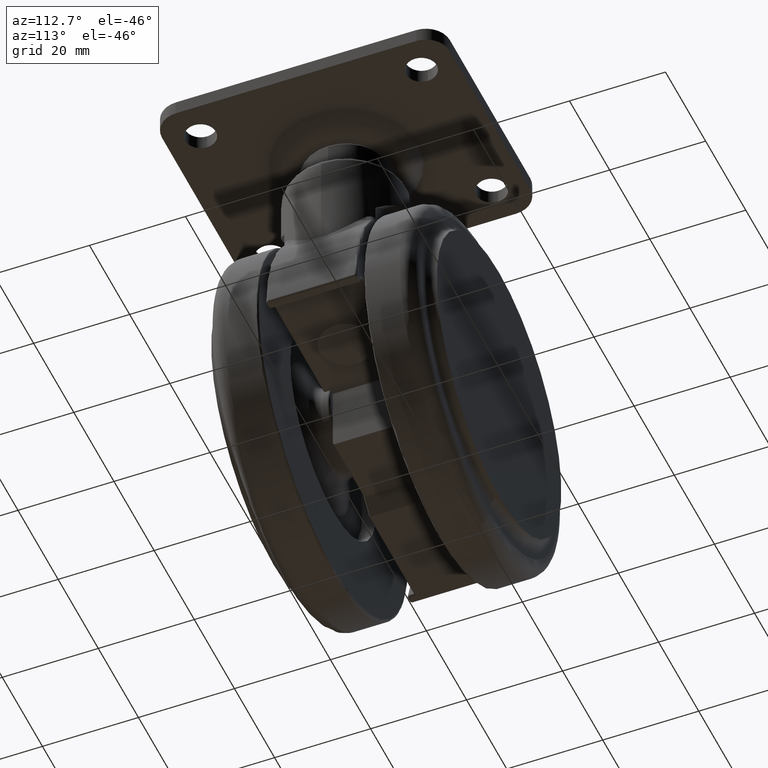
[diagram: clean part render]
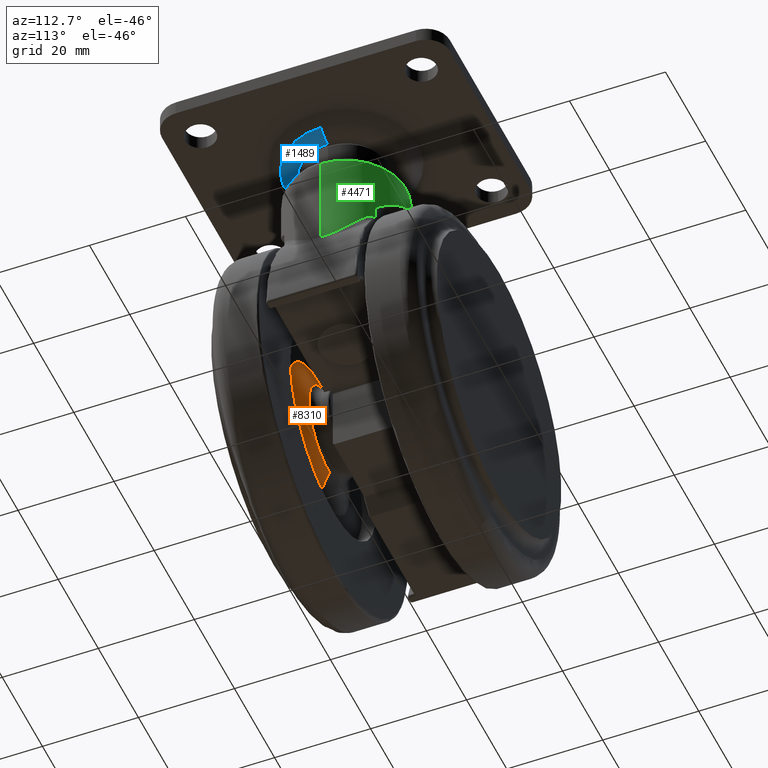
[diagram: same view with three faces highlighted in distinct colors, each labeled with its STEP entity id]
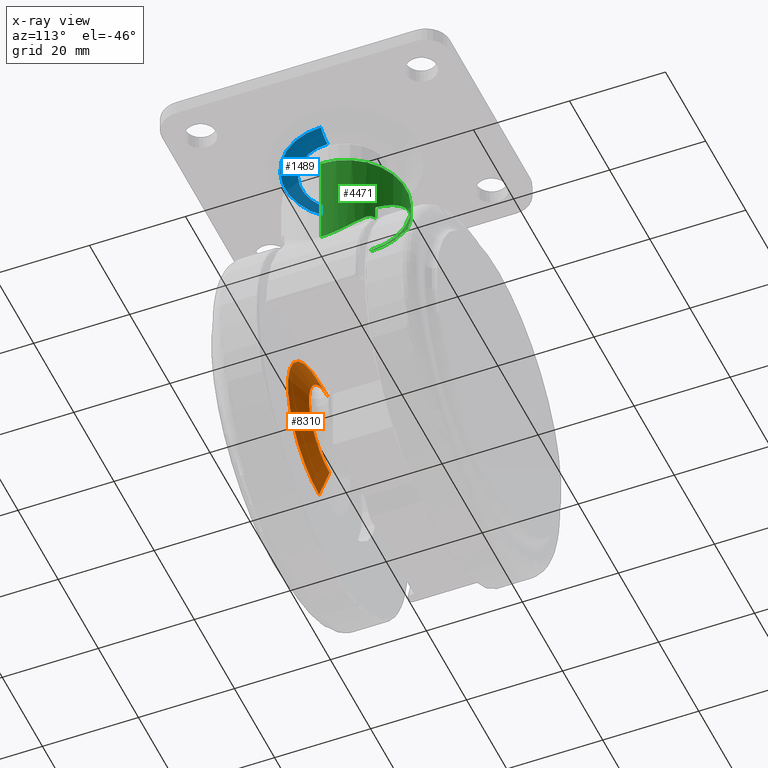
[diagram: x-ray of the same camera — body ghosted, the three highlighted faces saturated]
A machine part, auxiliary view with three faces highlighted in distinct colors.
The next image is the same camera in x-ray (body ghosted, the three faces saturated) — at least one of them is partly hidden behind the body in this view.
Their STEP definitions:

[orange] entity #8310 — the highlighted conical surface has half-angle 67.536 deg.
#177 = VERTEX_POINT ( 'NONE', #8732 ) ;
#424 = EDGE_CURVE ( 'NONE', #4074, #1615, #5261, .T. ) ;
#449 = AXIS2_PLACEMENT_3D ( 'NONE', #7036, #2832, #7751 ) ;
#812 = CIRCLE ( 'NONE', #1290, 10.23579126016620200 ) ;
#1241 = ORIENTED_EDGE ( 'NONE', *, *, #2186, .F. ) ;
#1290 = AXIS2_PLACEMENT_3D ( 'NONE', #7236, #3044, #7945 ) ;
#1615 = VERTEX_POINT ( 'NONE', #2672 ) ;
#1928 = DIRECTION ( 'NONE',  ( 0.0000000000000000000, 0.0000000000000000000, -1.000000000000000000 ) ) ;
#1983 = CIRCLE ( 'NONE', #449, 15.50000000000000000 ) ;
#2186 = EDGE_CURVE ( 'NONE', #1615, #177, #1983, .T. ) ;
#2672 = CARTESIAN_POINT ( 'NONE',  ( -20.00000000000000000, -14.00000000000000000, -56.00000000000000000 ) ) ;
#2832 = DIRECTION ( 'NONE',  ( 0.0000000000000000000, -1.000000000000000000, 0.0000000000000000000 ) ) ;
#2878 = CARTESIAN_POINT ( 'NONE',  ( -20.00000000000000000, -14.00000000000000000, -56.00000000000000000 ) ) ;
#3044 = DIRECTION ( 'NONE',  ( 0.0000000000000000000, -1.000000000000000000, 0.0000000000000000000 ) ) ;
#4020 = CARTESIAN_POINT ( 'NONE',  ( -19.99999999999999600, -14.00000000000000000, -25.00000000000000000 ) ) ;
#4035 = DIRECTION ( 'NONE',  ( 0.0000000000000000000, -1.000000000000000000, 0.0000000000000000000 ) ) ;
#4074 = VERTEX_POINT ( 'NONE', #8306 ) ;
#4340 = ORIENTED_EDGE ( 'NONE', *, *, #7129, .T. ) ;
#4354 = LINE ( 'NONE', #4020, #7853 ) ;
#4618 = CARTESIAN_POINT ( 'NONE',  ( -19.99999999999999600, -11.82335740127932100, -30.26420873983379800 ) ) ;
#4907 = EDGE_CURVE ( 'NONE', #8701, #177, #4354, .T. ) ;
#4911 = DIRECTION ( 'NONE',  ( 0.0000000000000000000, -0.3821043699168795200, -0.9241191754803188600 ) ) ;
#5000 = FACE_OUTER_BOUND ( 'NONE', #8636, .T. ) ;
#5261 = LINE ( 'NONE', #2878, #8808 ) ;
#5428 = CARTESIAN_POINT ( 'NONE',  ( -20.00000000000000000, -14.00000000000000000, -40.50000000000000000 ) ) ;
#6363 = ORIENTED_EDGE ( 'NONE', *, *, #424, .F. ) ;
#6639 = CONICAL_SURFACE ( 'NONE', #7512, 15.50000000000000000, 1.178723936475072600 ) ;
#7036 = CARTESIAN_POINT ( 'NONE',  ( -20.00000000000000000, -14.00000000000000000, -40.50000000000000000 ) ) ;
#7129 = EDGE_CURVE ( 'NONE', #4074, #8701, #812, .T. ) ;
#7236 = CARTESIAN_POINT ( 'NONE',  ( -20.00000000000000000, -11.82335740127932100, -40.50000000000000000 ) ) ;
#7512 = AXIS2_PLACEMENT_3D ( 'NONE', #5428, #4035, #1928 ) ;
#7751 = DIRECTION ( 'NONE',  ( 0.0000000000000000000, 0.0000000000000000000, -1.000000000000000000 ) ) ;
#7853 = VECTOR ( 'NONE', #8938, 1000.000000000000100 ) ;
#7945 = DIRECTION ( 'NONE',  ( 0.0000000000000000000, 0.0000000000000000000, -1.000000000000000000 ) ) ;
#8282 = ORIENTED_EDGE ( 'NONE', *, *, #4907, .T. ) ;
#8306 = CARTESIAN_POINT ( 'NONE',  ( -20.00000000000000000, -11.82335740127932100, -50.73579126016620200 ) ) ;
#8310 = ADVANCED_FACE ( 'NONE', ( #5000 ), #6639, .T. ) ;
#8636 = EDGE_LOOP ( 'NONE', ( #4340, #8282, #1241, #6363 ) ) ;
#8701 = VERTEX_POINT ( 'NONE', #4618 ) ;
#8732 = CARTESIAN_POINT ( 'NONE',  ( -19.99999999999999600, -14.00000000000000000, -25.00000000000000000 ) ) ;
#8808 = VECTOR ( 'NONE', #4911, 1000.000000000000100 ) ;
#8938 = DIRECTION ( 'NONE',  ( 1.131719590282663600E-016, -0.3821043699168795200, 0.9241191754803188600 ) ) ;

[blue] entity #1489 — the highlighted toroidal blend (fillet) surface has major radius 9.2637 mm and minor (blend) radius 5 mm.
#508 = AXIS2_PLACEMENT_3D ( 'NONE', #6356, #7064, #8499 ) ;
#586 = AXIS2_PLACEMENT_3D ( 'NONE', #3270, #8181, #3988 ) ;
#894 = EDGE_CURVE ( 'NONE', #1286, #4852, #7165, .T. ) ;
#1286 = VERTEX_POINT ( 'NONE', #3637 ) ;
#1489 = ADVANCED_FACE ( 'NONE', ( #5495 ), #7381, .T. ) ;
#1692 = AXIS2_PLACEMENT_3D ( 'NONE', #8324, #4132, #9042 ) ;
#1775 = AXIS2_PLACEMENT_3D ( 'NONE', #2849, #7766, #3582 ) ;
#2348 = EDGE_CURVE ( 'NONE', #8521, #4852, #4204, .T. ) ;
#2820 = CIRCLE ( 'NONE', #1775, 5.000000000000000000 ) ;
#2849 = CARTESIAN_POINT ( 'NONE',  ( 9.263748892140029100, 1.134482042886412700E-015, 12.50000000000000000 ) ) ;
#2929 = CARTESIAN_POINT ( 'NONE',  ( 9.263748892140029100, 1.342638959639023000E-015, 7.500000000000000000 ) ) ;
#2935 = CARTESIAN_POINT ( 'NONE',  ( -9.263748892140029100, 0.0000000000000000000, 12.50000000000000000 ) ) ;
#3265 = ORIENTED_EDGE ( 'NONE', *, *, #2348, .F. ) ;
#3270 = CARTESIAN_POINT ( 'NONE',  ( 0.0000000000000000000, 0.0000000000000000000, 8.833439107092829100 ) ) ;
#3358 = ORIENTED_EDGE ( 'NONE', *, *, #6194, .T. ) ;
#3435 = EDGE_CURVE ( 'NONE', #5974, #8521, #2820, .T. ) ;
#3582 = DIRECTION ( 'NONE',  ( -1.000000000000000000, -1.224646799147353200E-016, 0.0000000000000000000 ) ) ;
#3637 = CARTESIAN_POINT ( 'NONE',  ( -12.66320932265007600, 0.0000000000000000000, 8.833439107092829100 ) ) ;
#3654 = DIRECTION ( 'NONE',  ( 0.0000000000000000000, 0.0000000000000000000, -1.000000000000000000 ) ) ;
#3988 = DIRECTION ( 'NONE',  ( -1.000000000000000000, 0.0000000000000000000, 0.0000000000000000000 ) ) ;
#4005 = CARTESIAN_POINT ( 'NONE',  ( 12.66320932265007600, 1.550795876391633700E-015, 8.833439107092829100 ) ) ;
#4132 = DIRECTION ( 'NONE',  ( 0.0000000000000000000, 0.0000000000000000000, -1.000000000000000000 ) ) ;
#4204 = CIRCLE ( 'NONE', #1692, 9.263748892140029100 ) ;
#4665 = CARTESIAN_POINT ( 'NONE',  ( -9.263748892140029100, 0.0000000000000000000, 7.500000000000000000 ) ) ;
#4720 = ORIENTED_EDGE ( 'NONE', *, *, #894, .T. ) ;
#4852 = VERTEX_POINT ( 'NONE', #4665 ) ;
#5495 = FACE_OUTER_BOUND ( 'NONE', #6169, .T. ) ;
#5845 = CIRCLE ( 'NONE', #586, 12.66320932265004000 ) ;
#5974 = VERTEX_POINT ( 'NONE', #4005 ) ;
#6169 = EDGE_LOOP ( 'NONE', ( #8894, #3358, #4720, #3265 ) ) ;
#6194 = EDGE_CURVE ( 'NONE', #5974, #1286, #5845, .T. ) ;
#6356 = CARTESIAN_POINT ( 'NONE',  ( 0.0000000000000000000, 0.0000000000000000000, 12.50000000000000000 ) ) ;
#7064 = DIRECTION ( 'NONE',  ( 0.0000000000000000000, 0.0000000000000000000, -1.000000000000000000 ) ) ;
#7165 = CIRCLE ( 'NONE', #8234, 5.000000000000000000 ) ;
#7381 = TOROIDAL_SURFACE ( 'NONE', #508, 9.263748892140029100, 5.000000000000000000 ) ;
#7766 = DIRECTION ( 'NONE',  ( -1.224646799147353200E-016, 1.000000000000000000, 0.0000000000000000000 ) ) ;
#7839 = DIRECTION ( 'NONE',  ( -0.0000000000000000000, -1.000000000000000000, -0.0000000000000000000 ) ) ;
#8181 = DIRECTION ( 'NONE',  ( 0.0000000000000000000, 0.0000000000000000000, -1.000000000000000000 ) ) ;
#8234 = AXIS2_PLACEMENT_3D ( 'NONE', #2935, #7839, #3654 ) ;
#8324 = CARTESIAN_POINT ( 'NONE',  ( 0.0000000000000000000, 0.0000000000000000000, 7.500000000000000000 ) ) ;
#8499 = DIRECTION ( 'NONE',  ( -1.000000000000000000, 0.0000000000000000000, 0.0000000000000000000 ) ) ;
#8521 = VERTEX_POINT ( 'NONE', #2929 ) ;
#8894 = ORIENTED_EDGE ( 'NONE', *, *, #3435, .F. ) ;
#9042 = DIRECTION ( 'NONE',  ( -1.000000000000000000, 0.0000000000000000000, 0.0000000000000000000 ) ) ;

[green] entity #4471 — the highlighted cylindrical surface (partial cylindrical patch) has radius 12.5 mm, axis along (0, 0, 1).
#164 = B_SPLINE_CURVE_WITH_KNOTS ( 'NONE', 3,
 ( #3450, #5488, #3485, #8395, #4190, #9108, #4896, #672, #5583, #1375, #6288, #2079, #6986, #2793, #7701, #3515 ),
 .UNSPECIFIED., .F., .F.,
 ( 4, 2, 2, 2, 2, 2, 2, 4 ),
 ( 0.009895315815155585400, 0.01051114737048304900, 0.01112697892581051400, 0.01235864203646544500, 0.01359030514712037500, 0.01482196825777530600, 0.01728529447908517000, 0.01974862070039503500 ),
 .UNSPECIFIED. ) ;
#213 = CARTESIAN_POINT ( 'NONE',  ( -10.23288540953868700, 7.212688709750463700, -1.842278580792119400 ) ) ;
#242 = CARTESIAN_POINT ( 'NONE',  ( -12.42666126989931600, 1.396916351249774900, -1.396826883498183200 ) ) ;
#257 = CARTESIAN_POINT ( 'NONE',  ( -8.124038404635760100, 9.500000000000199000, -3.509269517877109800 ) ) ;
#291 = CARTESIAN_POINT ( 'NONE',  ( -8.124038404635760100, 9.500000000000289500, -2.827575918379995100 ) ) ;
#310 = DIRECTION ( 'NONE',  ( 1.000000000000000000, 0.0000000000000000000, 0.0000000000000000000 ) ) ;
#319 = CARTESIAN_POINT ( 'NONE',  ( -2.423900522645193500, 12.28606006104466200, -5.115720230095825500 ) ) ;
#335 = CARTESIAN_POINT ( 'NONE',  ( 8.775829961809202800, 8.904239938888919100, -15.59402660777254300 ) ) ;
#338 = VERTEX_POINT ( 'NONE', #2361 ) ;
#348 = CARTESIAN_POINT ( 'NONE',  ( 7.057369772667420300, 10.33921272159616600, -11.71191063927594200 ) ) ;
#359 = CARTESIAN_POINT ( 'NONE',  ( -9.048413332878100200, 8.626579312226319000, -2.369817165851912900 ) ) ;
#417 = DIRECTION ( 'NONE',  ( 1.000000000000000000, 0.0000000000000000000, 0.0000000000000000000 ) ) ;
#672 = CARTESIAN_POINT ( 'NONE',  ( 12.19651969656959000, 2.764479572170381400, -20.64563742137136900 ) ) ;
#688 = VERTEX_POINT ( 'NONE', #1067 ) ;
#939 = CARTESIAN_POINT ( 'NONE',  ( -12.49999999999920400, 0.3481409238785143100, -1.384785568784303400 ) ) ;
#1008 = CARTESIAN_POINT ( 'NONE',  ( -0.9226413412981486800, 12.47148504996416900, -5.909715332643641800 ) ) ;
#1009 = ORIENTED_EDGE ( 'NONE', *, *, #9032, .F. ) ;
#1031 = CARTESIAN_POINT ( 'NONE',  ( 8.276296784168808400, 9.369794429183977900, -15.60099923228889900 ) ) ;
#1042 = CARTESIAN_POINT ( 'NONE',  ( 8.124038404635760100, 9.500000000000289500, -12.76395010433990000 ) ) ;
#1055 = CARTESIAN_POINT ( 'NONE',  ( -9.498074011279646500, 8.129423282459271100, -2.064126644007711500 ) ) ;
#1067 = CARTESIAN_POINT ( 'NONE',  ( -8.124038404635760100, 9.500000000000289500, -2.827575918379995100 ) ) ;
#1084 = DIRECTION ( 'NONE',  ( 0.0000000000000000000, 0.0000000000000000000, 1.000000000000000000 ) ) ;
#1342 = CIRCLE ( 'NONE', #4370, 12.50000000000000000 ) ;
#1375 = CARTESIAN_POINT ( 'NONE',  ( 11.90577962453268800, 3.825302934773724000, -20.07604034726683700 ) ) ;
#1466 = CARTESIAN_POINT ( 'NONE',  ( 8.124038404635760100, 9.500000000000199000, -1000.000000000000000 ) ) ;
#1588 = CARTESIAN_POINT ( 'NONE',  ( -9.800704311122359500, 7.758620689655350200, -1.954537490956624900 ) ) ;
#1690 = CARTESIAN_POINT ( 'NONE',  ( -7.487748397790781500, 10.04413099495750700, -3.028161781090440700 ) ) ;
#1705 = ORIENTED_EDGE ( 'NONE', *, *, #4676, .T. ) ;
#1719 = CARTESIAN_POINT ( 'NONE',  ( 0.1906783963285148800, 12.50382895497999600, -6.547573074297582200 ) ) ;
#1761 = CARTESIAN_POINT ( 'NONE',  ( -9.800704311122359500, 7.758620689655350200, -1.954537490956624900 ) ) ;
#1819 = VECTOR ( 'NONE', #7265, 1000.000000000000000 ) ;
#1833 = VERTEX_POINT ( 'NONE', #257 ) ;
#2008 = LINE ( 'NONE', #7012, #3695 ) ;
#2079 = CARTESIAN_POINT ( 'NONE',  ( 11.42797161569996300, 5.110359988754490600, -19.17992533263655700 ) ) ;
#2249 = VECTOR ( 'NONE', #2755, 1000.000000000000000 ) ;
#2317 = CARTESIAN_POINT ( 'NONE',  ( -11.12152493988276600, 5.716934575645527000, -1.642657052712366100 ) ) ;
#2361 = CARTESIAN_POINT ( 'NONE',  ( -9.800704311122359500, 7.758620689655350200, -1.954537490956624900 ) ) ;
#2411 = CARTESIAN_POINT ( 'NONE',  ( 9.698552772815935100, 7.887658705807166500, -16.34000326933357200 ) ) ;
#2419 = ORIENTED_EDGE ( 'NONE', *, *, #5525, .T. ) ;
#2425 = CARTESIAN_POINT ( 'NONE',  ( 1.987225206651481500, 12.36117640328328400, -7.674395283927894200 ) ) ;
#2574 = CARTESIAN_POINT ( 'NONE',  ( 8.124038404635760100, 9.500000000000289500, -12.76395010433990000 ) ) ;
#2735 = B_SPLINE_CURVE_WITH_KNOTS ( 'NONE', 3,
 ( #4520, #2411, #8035, #3849, #8772, #4556, #335, #5240, #1031, #5946 ),
 .UNSPECIFIED., .F., .F.,
 ( 4, 2, 2, 2, 4 ),
 ( 0.0000000000000000000, 0.0006772690922146827000, 0.001354538184429365400, 0.002031807276644048000, 0.002709076368858730800 ),
 .UNSPECIFIED. ) ;
#2755 = DIRECTION ( 'NONE',  ( 0.0000000000000000000, 0.0000000000000000000, 1.000000000000000000 ) ) ;
#2792 = CYLINDRICAL_SURFACE ( 'NONE', #8043, 12.50000000000000000 ) ;
#2793 = CARTESIAN_POINT ( 'NONE',  ( 10.51631273801460900, 6.786074359790364800, -17.61132054316803400 ) ) ;
#2795 = ORIENTED_EDGE ( 'NONE', *, *, #3375, .T. ) ;
#2960 = VERTEX_POINT ( 'NONE', #3782 ) ;
#3042 = FACE_OUTER_BOUND ( 'NONE', #8083, .T. ) ;
#3043 = CARTESIAN_POINT ( 'NONE',  ( -11.56263579329884200, 4.762142757172538800, -1.552792187675227800 ) ) ;
#3110 = CARTESIAN_POINT ( 'NONE',  ( -5.760186106078375400, 11.10102315058556500, -3.654121545514958900 ) ) ;
#3146 = CARTESIAN_POINT ( 'NONE',  ( 3.361460040201889900, 12.04454587488760200, -8.646209436129877800 ) ) ;
#3155 = CARTESIAN_POINT ( 'NONE',  ( -8.124038404635760100, 9.500000000000199000, -3.509269517877109800 ) ) ;
#3282 = CARTESIAN_POINT ( 'NONE',  ( -12.50000000000000000, 2.869450499157187200E-011, -1.384785568784175000 ) ) ;
#3375 = EDGE_CURVE ( 'NONE', #2960, #3923, #164, .T. ) ;
#3450 = CARTESIAN_POINT ( 'NONE',  ( 12.50000000000000000, -4.521425626137736800E-014, -21.26461593832948100 ) ) ;
#3485 = CARTESIAN_POINT ( 'NONE',  ( 12.49486425910481700, 0.4131309339116083800, -21.25391948518662500 ) ) ;
#3490 = VERTEX_POINT ( 'NONE', #5014 ) ;
#3515 = CARTESIAN_POINT ( 'NONE',  ( 9.800704311122359500, 7.758620689655350200, -16.49484805372205200 ) ) ;
#3695 = VECTOR ( 'NONE', #8417, 1000.000000000000000 ) ;
#3759 = CARTESIAN_POINT ( 'NONE',  ( -12.03351875885955000, 3.453605914257576300, -1.463773444533736700 ) ) ;
#3782 = CARTESIAN_POINT ( 'NONE',  ( 12.50000000000000000, -4.521425626137736800E-014, -21.26461593832948100 ) ) ;
#3802 = VECTOR ( 'NONE', #7088, 1000.000000000000000 ) ;
#3835 = CARTESIAN_POINT ( 'NONE',  ( -4.667873195039472700, 11.60264225398876500, -4.094880288890091300 ) ) ;
#3849 = CARTESIAN_POINT ( 'NONE',  ( 9.346136614318915300, 8.302638197311356500, -15.94109103751570600 ) ) ;
#3864 = CARTESIAN_POINT ( 'NONE',  ( 4.348636287935539400, 11.72415621106185800, -9.394401833624074900 ) ) ;
#3880 = CARTESIAN_POINT ( 'NONE',  ( -8.361389606682635600, 9.293505541940865200, -3.128241768363569700 ) ) ;
#3923 = VERTEX_POINT ( 'NONE', #5105 ) ;
#4123 = VERTEX_POINT ( 'NONE', #6966 ) ;
#4190 = CARTESIAN_POINT ( 'NONE',  ( 12.45941328619309700, 1.026208498936473000, -21.18035968541611100 ) ) ;
#4349 = CARTESIAN_POINT ( 'NONE',  ( 8.124038404635760100, 9.500000000000199000, -15.71283845110859900 ) ) ;
#4370 = AXIS2_PLACEMENT_3D ( 'NONE', #8746, #4523, #310 ) ;
#4391 = EDGE_CURVE ( 'NONE', #8803, #4123, #7212, .T. ) ;
#4462 = CARTESIAN_POINT ( 'NONE',  ( -12.38220688136235400, 1.747308881599990000, -1.404181937845039500 ) ) ;
#4471 = ADVANCED_FACE ( 'NONE', ( #3042 ), #2792, .T. ) ;
#4520 = CARTESIAN_POINT ( 'NONE',  ( 9.800704311122359500, 7.758620689655350200, -16.49484805372205200 ) ) ;
#4523 = DIRECTION ( 'NONE',  ( -0.0000000000000000000, -0.0000000000000000000, -1.000000000000000000 ) ) ;
#4535 = CARTESIAN_POINT ( 'NONE',  ( -3.173450168658117600, 12.11599973852339900, -4.753875993226530200 ) ) ;
#4556 = CARTESIAN_POINT ( 'NONE',  ( 8.930945292442476800, 8.748218348387306200, -15.65613354702130200 ) ) ;
#4575 = CARTESIAN_POINT ( 'NONE',  ( 5.902730154748341300, 11.03918314599410700, -10.66874259126541200 ) ) ;
#4586 = CARTESIAN_POINT ( 'NONE',  ( -8.761963618089485100, 8.917378988694691700, -2.639830429540492000 ) ) ;
#4638 = CARTESIAN_POINT ( 'NONE',  ( 0.0000000000000000000, 2.842170943040399500E-014, -1000.000000000000000 ) ) ;
#4676 = EDGE_CURVE ( 'NONE', #338, #8803, #8645, .T. ) ;
#4776 = EDGE_CURVE ( 'NONE', #1833, #338, #6968, .T. ) ;
#4810 = ORIENTED_EDGE ( 'NONE', *, *, #8445, .F. ) ;
#4839 = B_SPLINE_CURVE_WITH_KNOTS ( 'NONE', 3,
 ( #291, #1690, #7318, #3110, #8020, #3835, #8757, #4535, #319, #5226, #1008, #5927, #1719, #6637, #2425, #7343, #3146, #8052, #3864, #8783, #4575, #348, #5253, #1042 ),
 .UNSPECIFIED., .F., .F.,
 ( 4, 2, 2, 2, 2, 2, 2, 2, 2, 2, 2, 4 ),
 ( 9.290088031491037000E-017, 0.002543590775174047000, 0.003815386162761023400, 0.005087181550348001200, 0.007630772325521954100, 0.008902567713108933100, 0.01017436310069591000, 0.01271795387586986900, 0.01398974926345684900, 0.01526154465104382700, 0.01780513542621778000, 0.02034872620139173100 ),
 .UNSPECIFIED. ) ;
#4896 = CARTESIAN_POINT ( 'NONE',  ( 12.34320403611512200, 2.010660124583141700, -20.94121814934803900 ) ) ;
#5014 = CARTESIAN_POINT ( 'NONE',  ( 12.50000000000000000, 2.842170943040399500E-014, -1.000000000000000000 ) ) ;
#5105 = CARTESIAN_POINT ( 'NONE',  ( 9.800704311122359500, 7.758620689655350200, -16.49484805372205200 ) ) ;
#5150 = CARTESIAN_POINT ( 'NONE',  ( -12.48548264933146800, 0.6971431864744199700, -1.387141981265432900 ) ) ;
#5226 = CARTESIAN_POINT ( 'NONE',  ( -1.299104133881991800, 12.43806535764908900, -5.704804559784728100 ) ) ;
#5240 = CARTESIAN_POINT ( 'NONE',  ( 8.449514833253672900, 9.214465773473730100, -15.56471015390878400 ) ) ;
#5253 = CARTESIAN_POINT ( 'NONE',  ( 7.607734245416588200, 9.941523665049633300, -12.24042357273291200 ) ) ;
#5263 = CARTESIAN_POINT ( 'NONE',  ( -9.198431851282642000, 8.466982006975428000, -2.251236318374796300 ) ) ;
#5488 = CARTESIAN_POINT ( 'NONE',  ( 12.50000000000000400, 0.2051512808925715400, -21.26461593832946300 ) ) ;
#5525 = EDGE_CURVE ( 'NONE', #4123, #3490, #1342, .T. ) ;
#5583 = CARTESIAN_POINT ( 'NONE',  ( 12.10684696762735500, 3.131259732628127100, -20.46723090112012100 ) ) ;
#5654 = LINE ( 'NONE', #1466, #3802 ) ;
#5819 = ORIENTED_EDGE ( 'NONE', *, *, #4776, .T. ) ;
#5842 = EDGE_CURVE ( 'NONE', #688, #5982, #4839, .T. ) ;
#5854 = CARTESIAN_POINT ( 'NONE',  ( -12.50000000000000000, 2.869450499157187200E-011, -1.384785568784175000 ) ) ;
#5927 = CARTESIAN_POINT ( 'NONE',  ( -0.1771562865233329800, 12.50431213807051000, -6.331472465548465300 ) ) ;
#5946 = CARTESIAN_POINT ( 'NONE',  ( 8.124038404635760100, 9.500000000000199000, -15.71283845110859900 ) ) ;
#5975 = CARTESIAN_POINT ( 'NONE',  ( -9.648757883106855000, 7.950559704549681900, -1.994005529875755700 ) ) ;
#5981 = LINE ( 'NONE', #9106, #2249 ) ;
#5982 = VERTEX_POINT ( 'NONE', #2574 ) ;
#6018 = VERTEX_POINT ( 'NONE', #4349 ) ;
#6288 = CARTESIAN_POINT ( 'NONE',  ( 11.79381296301298900, 4.155966122268537800, -19.86207681235060100 ) ) ;
#6527 = CARTESIAN_POINT ( 'NONE',  ( -10.61737033842575600, 6.633858516677821400, -1.752537952465582000 ) ) ;
#6530 = CARTESIAN_POINT ( 'NONE',  ( -12.50000000000000000, 2.995251792933819000E-014, -1000.000000000000000 ) ) ;
#6637 = CARTESIAN_POINT ( 'NONE',  ( 1.279961525957312100, 12.45552430196967100, -7.211317381873616500 ) ) ;
#6966 = CARTESIAN_POINT ( 'NONE',  ( -12.50000000000000000, 2.995251792933819000E-014, -1.000000000000000000 ) ) ;
#6968 = B_SPLINE_CURVE_WITH_KNOTS ( 'NONE', 3,
 ( #3155, #8069, #3880, #8796, #4586, #359, #5263, #1055, #5975, #1761 ),
 .UNSPECIFIED., .F., .F.,
 ( 4, 2, 2, 2, 4 ),
 ( 0.0000000000000000000, 0.0007389998836049567300, 0.001477999767209913500, 0.002216999650814870200, 0.002955999534419826900 ),
 .UNSPECIFIED. ) ;
#6983 = EDGE_CURVE ( 'NONE', #5982, #6018, #5654, .T. ) ;
#6986 = CARTESIAN_POINT ( 'NONE',  ( 11.14296702772367300, 5.698940659402906000, -18.66994685919411600 ) ) ;
#7012 = CARTESIAN_POINT ( 'NONE',  ( -8.124038404635760100, 9.500000000000199000, -1000.000000000000000 ) ) ;
#7088 = DIRECTION ( 'NONE',  ( -0.0000000000000000000, -0.0000000000000000000, -1.000000000000000000 ) ) ;
#7212 = LINE ( 'NONE', #6530, #1819 ) ;
#7234 = CARTESIAN_POINT ( 'NONE',  ( -11.27798686458381500, 5.401811030611991500, -1.610081209059384100 ) ) ;
#7265 = DIRECTION ( 'NONE',  ( 0.0000000000000000000, 0.0000000000000000000, 1.000000000000000000 ) ) ;
#7318 = CARTESIAN_POINT ( 'NONE',  ( -6.814978268155415200, 10.50980052477438200, -3.257961425350817600 ) ) ;
#7343 = CARTESIAN_POINT ( 'NONE',  ( 3.020950366758270900, 12.13459086270910300, -8.399175345060175600 ) ) ;
#7437 = EDGE_CURVE ( 'NONE', #3923, #6018, #2735, .T. ) ;
#7537 = ORIENTED_EDGE ( 'NONE', *, *, #6983, .F. ) ;
#7701 = CARTESIAN_POINT ( 'NONE',  ( 10.17320868212767600, 7.288072464544742800, -17.05950287897842400 ) ) ;
#7934 = ORIENTED_EDGE ( 'NONE', *, *, #7437, .T. ) ;
#7941 = CARTESIAN_POINT ( 'NONE',  ( -11.69077132150132800, 4.438086050435169100, -1.528072952406501800 ) ) ;
#7991 = ORIENTED_EDGE ( 'NONE', *, *, #5842, .F. ) ;
#8020 = CARTESIAN_POINT ( 'NONE',  ( -5.400915275746733400, 11.28009138363777500, -3.794774503380205400 ) ) ;
#8035 = CARTESIAN_POINT ( 'NONE',  ( 9.587211450263776400, 8.023057226325722300, -16.19569702568386700 ) ) ;
#8043 = AXIS2_PLACEMENT_3D ( 'NONE', #4638, #1084, #417 ) ;
#8052 = CARTESIAN_POINT ( 'NONE',  ( 4.024726736485164700, 11.83942877130343000, -9.143433004646929900 ) ) ;
#8069 = CARTESIAN_POINT ( 'NONE',  ( -8.236954266551872900, 9.403438652768723900, -3.312053586322703000 ) ) ;
#8083 = EDGE_LOOP ( 'NONE', ( #1705, #9074, #2419, #4810, #2795, #7934, #7537, #7991, #1009, #5819 ) ) ;
#8395 = CARTESIAN_POINT ( 'NONE',  ( 12.47450638077713200, 0.8240149136758844200, -21.21165583268538800 ) ) ;
#8417 = DIRECTION ( 'NONE',  ( 0.0000000000000000000, 0.0000000000000000000, 1.000000000000000000 ) ) ;
#8445 = EDGE_CURVE ( 'NONE', #2960, #3490, #5981, .T. ) ;
#8645 = B_SPLINE_CURVE_WITH_KNOTS ( 'NONE', 3,
 ( #1588, #213, #6527, #2317, #7234, #3043, #7941, #3759, #8675, #4462, #242, #5150, #939, #5854 ),
 .UNSPECIFIED., .F., .F.,
 ( 4, 2, 2, 2, 2, 2, 4 ),
 ( 0.0000000000000000000, 0.002100996490530544500, 0.003151494735795817800, 0.004201992981061091600, 0.006302989471591637400, 0.007353487716856911200, 0.008403985962122183200 ),
 .UNSPECIFIED. ) ;
#8675 = CARTESIAN_POINT ( 'NONE',  ( -12.20675224644967800, 2.780960610310266600, -1.433886200978378800 ) ) ;
#8746 = CARTESIAN_POINT ( 'NONE',  ( 0.0000000000000000000, 2.842170943040399500E-014, -1.000000000000000000 ) ) ;
#8757 = CARTESIAN_POINT ( 'NONE',  ( -4.293371977891305300, 11.74612770102011100, -4.254739946323129900 ) ) ;
#8772 = CARTESIAN_POINT ( 'NONE',  ( 9.216554181854606400, 8.446788567295803000, -15.83007086224959000 ) ) ;
#8783 = CARTESIAN_POINT ( 'NONE',  ( 5.298514036514713000, 11.34203044914688800, -10.15378947833492000 ) ) ;
#8796 = CARTESIAN_POINT ( 'NONE',  ( -8.624235901738675400, 9.050118039229520400, -2.791811407025933400 ) ) ;
#8803 = VERTEX_POINT ( 'NONE', #3282 ) ;
#9032 = EDGE_CURVE ( 'NONE', #1833, #688, #2008, .T. ) ;
#9074 = ORIENTED_EDGE ( 'NONE', *, *, #4391, .T. ) ;
#9106 = CARTESIAN_POINT ( 'NONE',  ( 12.50000000000000000, 2.842170943040399500E-014, -1000.000000000000000 ) ) ;
#9108 = CARTESIAN_POINT ( 'NONE',  ( 12.40053034733858400, 1.623939771836729000, -21.05888714805788500 ) ) ;